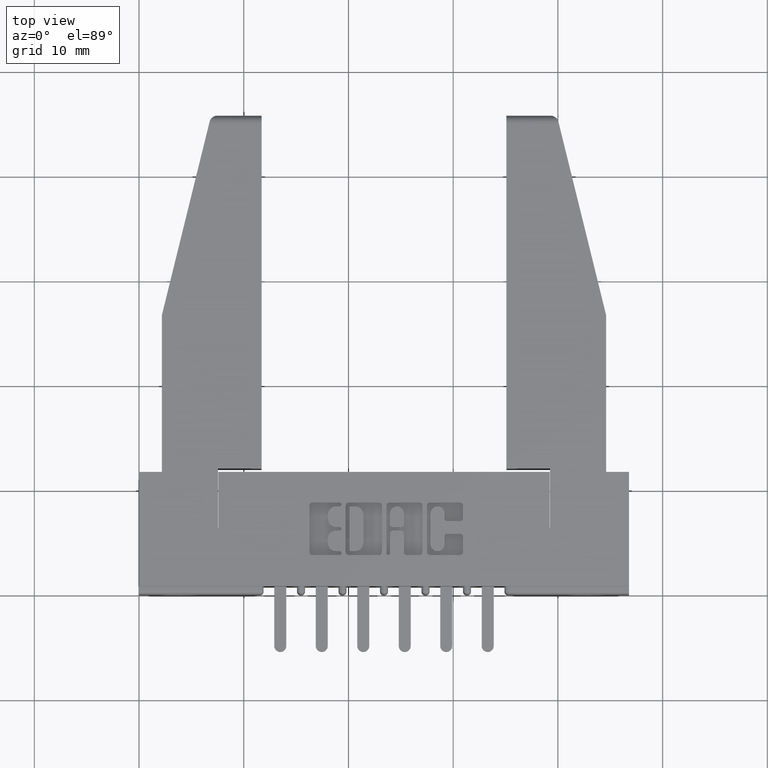
[diagram: clean part render]
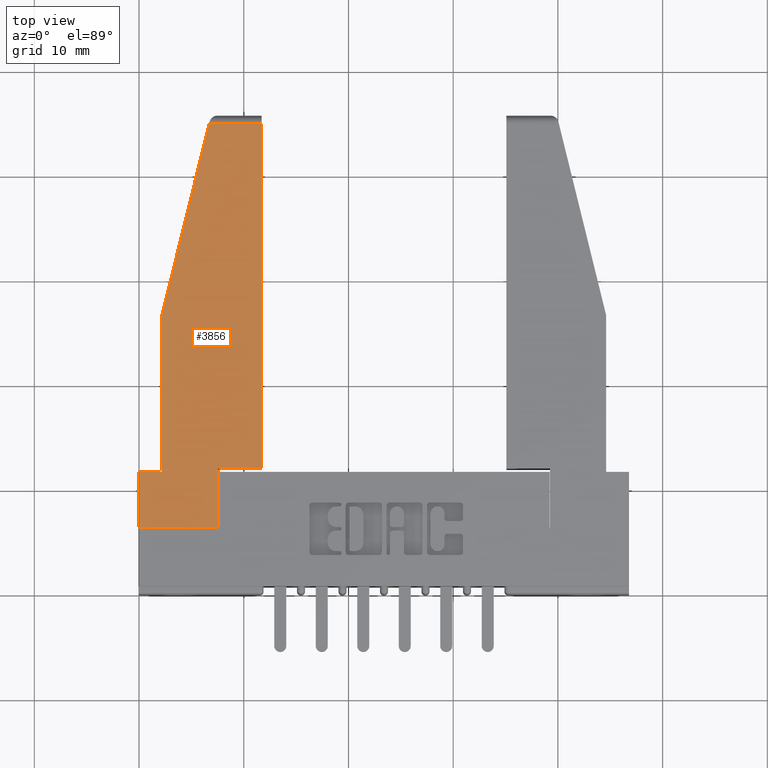
[diagram: same view with one face highlighted and labeled with its STEP entity id]
A machine part, top view. The second image highlights one B-rep face of the part: STEP entity #3856.
In plain terms, the highlighted planar face has unit normal (0, 0, 1).
Its self-contained STEP definition (entity closure, byte-faithful):
#1 = VERTEX_POINT ( 'NONE', #9636 ) ;
#54 = VERTEX_POINT ( 'NONE', #9536 ) ;
#191 = VERTEX_POINT ( 'NONE', #9671 ) ;
#246 = DIRECTION ( 'NONE',  ( 1.000000000000000000, 0.0000000000000000000, 0.0000000000000000000 ) ) ;
#300 = DIRECTION ( 'NONE',  ( -2.584735727134676700E-016, -1.000000000000000000, 0.0000000000000000000 ) ) ;
#354 = AXIS2_PLACEMENT_3D ( 'NONE', #5036, #8093, #1953 ) ;
#1241 = VECTOR ( 'NONE', #11266, 39.37007874015748100 ) ;
#1250 = EDGE_CURVE ( 'NONE', #9589, #11050, #11596, .T. ) ;
#1578 = CARTESIAN_POINT ( 'NONE',  ( 5.427945026982818800E-017, 0.2099999999999999400, 0.0000000000000000000 ) ) ;
#1601 = EDGE_LOOP ( 'NONE', ( #12337, #3460, #12536, #12217, #6101, #3802, #8323, #13134, #12881 ) ) ;
#1750 = CARTESIAN_POINT ( 'NONE',  ( 0.2710000000000000200, 1.550000000000000000, 0.0000000000000000000 ) ) ;
#1953 = DIRECTION ( 'NONE',  ( 1.000000000000000000, 0.0000000000000000000, 0.0000000000000000000 ) ) ;
#2279 = CARTESIAN_POINT ( 'NONE',  ( 0.0000000000000000000, 0.0000000000000000000, 0.0000000000000000000 ) ) ;
#2455 = LINE ( 'NONE', #1578, #6972 ) ;
#2670 = LINE ( 'NONE', #1750, #12767 ) ;
#3014 = VECTOR ( 'NONE', #6002, 39.37007874015748100 ) ;
#3190 = CARTESIAN_POINT ( 'NONE',  ( 0.08600000000000011800, 0.2099999999999999400, 0.0000000000000000000 ) ) ;
#3460 = ORIENTED_EDGE ( 'NONE', *, *, #8180, .T. ) ;
#3802 = ORIENTED_EDGE ( 'NONE', *, *, #1250, .T. ) ;
#3846 = DIRECTION ( 'NONE',  ( -0.2394884713086026000, -0.9708992080078490100, 0.0000000000000000000 ) ) ;
#3856 = ADVANCED_FACE ( 'NONE', ( #5290 ), #12275, .T. ) ;
#3936 = CARTESIAN_POINT ( 'NONE',  ( 0.2969999999999999900, 0.0000000000000000000, 0.0000000000000000000 ) ) ;
#4012 = DIRECTION ( 'NONE',  ( 0.0000000000000000000, 1.000000000000000000, 0.0000000000000000000 ) ) ;
#4109 = CARTESIAN_POINT ( 'NONE',  ( 0.2969999999999999900, 0.2230000000000000300, 0.0000000000000000000 ) ) ;
#4328 = EDGE_CURVE ( 'NONE', #11050, #8376, #12777, .T. ) ;
#4750 = EDGE_CURVE ( 'NONE', #191, #1, #2670, .T. ) ;
#4773 = LINE ( 'NONE', #3936, #8317 ) ;
#5036 = CARTESIAN_POINT ( 'NONE',  ( -7.582401355855259500E-033, 0.0000000000000000000, 0.0000000000000000000 ) ) ;
#5180 = VERTEX_POINT ( 'NONE', #12475 ) ;
#5249 = LINE ( 'NONE', #4109, #1241 ) ;
#5290 = FACE_OUTER_BOUND ( 'NONE', #1601, .T. ) ;
#5926 = EDGE_CURVE ( 'NONE', #1, #9714, #7323, .T. ) ;
#6002 = DIRECTION ( 'NONE',  ( 5.146661630867112300E-017, 1.000000000000000000, 0.0000000000000000000 ) ) ;
#6101 = ORIENTED_EDGE ( 'NONE', *, *, #7643, .T. ) ;
#6135 = DIRECTION ( 'NONE',  ( -1.000000000000000000, 0.0000000000000000000, -0.0000000000000000000 ) ) ;
#6168 = VECTOR ( 'NONE', #300, 39.37007874015748100 ) ;
#6847 = CARTESIAN_POINT ( 'NONE',  ( 0.2969999999999999900, 0.0000000000000000000, 0.0000000000000000000 ) ) ;
#6885 = DIRECTION ( 'NONE',  ( -2.893906772949430800E-017, -1.000000000000000000, 0.0000000000000000000 ) ) ;
#6972 = VECTOR ( 'NONE', #8755, 39.37007874015748100 ) ;
#7323 = LINE ( 'NONE', #10057, #11462 ) ;
#7643 = EDGE_CURVE ( 'NONE', #9714, #9589, #2455, .T. ) ;
#8064 = LINE ( 'NONE', #9183, #12200 ) ;
#8093 = DIRECTION ( 'NONE',  ( -0.0000000000000000000, 0.0000000000000000000, 1.000000000000000000 ) ) ;
#8180 = EDGE_CURVE ( 'NONE', #13160, #191, #8064, .T. ) ;
#8317 = VECTOR ( 'NONE', #4012, 39.37007874015748100 ) ;
#8323 = ORIENTED_EDGE ( 'NONE', *, *, #4328, .T. ) ;
#8376 = VERTEX_POINT ( 'NONE', #6847 ) ;
#8404 = CARTESIAN_POINT ( 'NONE',  ( 5.427945026982818800E-017, 0.2099999999999999400, 0.0000000000000000000 ) ) ;
#8755 = DIRECTION ( 'NONE',  ( -1.000000000000000000, -0.0000000000000000000, -0.0000000000000000000 ) ) ;
#9183 = CARTESIAN_POINT ( 'NONE',  ( -7.582401355855259500E-033, 1.520000000000000200, 0.0000000000000000000 ) ) ;
#9536 = CARTESIAN_POINT ( 'NONE',  ( 0.4610000000000000200, 0.2230000000000000300, 0.0000000000000000000 ) ) ;
#9589 = VERTEX_POINT ( 'NONE', #12182 ) ;
#9636 = CARTESIAN_POINT ( 'NONE',  ( 0.08600000000000013200, 0.8000000000000000400, 0.0000000000000000000 ) ) ;
#9671 = CARTESIAN_POINT ( 'NONE',  ( 0.2636000000000000600, 1.520000000000000200, 0.0000000000000000000 ) ) ;
#9714 = VERTEX_POINT ( 'NONE', #3190 ) ;
#10057 = CARTESIAN_POINT ( 'NONE',  ( 0.08600000000000013200, 0.8000000000000000400, 0.0000000000000000000 ) ) ;
#10491 = EDGE_CURVE ( 'NONE', #8376, #5180, #4773, .T. ) ;
#10507 = EDGE_CURVE ( 'NONE', #54, #13160, #12620, .T. ) ;
#10943 = CARTESIAN_POINT ( 'NONE',  ( 0.0000000000000000000, 0.0000000000000000000, 0.0000000000000000000 ) ) ;
#11050 = VERTEX_POINT ( 'NONE', #10943 ) ;
#11188 = CARTESIAN_POINT ( 'NONE',  ( 0.4610000000000000200, 0.2230000000000000300, 0.0000000000000000000 ) ) ;
#11223 = EDGE_CURVE ( 'NONE', #5180, #54, #5249, .T. ) ;
#11266 = DIRECTION ( 'NONE',  ( 1.000000000000000000, 0.0000000000000000000, 0.0000000000000000000 ) ) ;
#11367 = CARTESIAN_POINT ( 'NONE',  ( 0.4610000000000000800, 1.519999999999999600, 0.0000000000000000000 ) ) ;
#11462 = VECTOR ( 'NONE', #6885, 39.37007874015748100 ) ;
#11596 = LINE ( 'NONE', #8404, #6168 ) ;
#11652 = VECTOR ( 'NONE', #246, 39.37007874015748100 ) ;
#12182 = CARTESIAN_POINT ( 'NONE',  ( 5.427945026982818800E-017, 0.2099999999999999400, 0.0000000000000000000 ) ) ;
#12200 = VECTOR ( 'NONE', #6135, 39.37007874015748100 ) ;
#12217 = ORIENTED_EDGE ( 'NONE', *, *, #5926, .T. ) ;
#12275 = PLANE ( 'NONE',  #354 ) ;
#12337 = ORIENTED_EDGE ( 'NONE', *, *, #10507, .T. ) ;
#12475 = CARTESIAN_POINT ( 'NONE',  ( 0.2969999999999999900, 0.2230000000000000300, 0.0000000000000000000 ) ) ;
#12536 = ORIENTED_EDGE ( 'NONE', *, *, #4750, .T. ) ;
#12620 = LINE ( 'NONE', #11188, #3014 ) ;
#12767 = VECTOR ( 'NONE', #3846, 39.37007874015748900 ) ;
#12777 = LINE ( 'NONE', #2279, #11652 ) ;
#12881 = ORIENTED_EDGE ( 'NONE', *, *, #11223, .T. ) ;
#13134 = ORIENTED_EDGE ( 'NONE', *, *, #10491, .T. ) ;
#13160 = VERTEX_POINT ( 'NONE', #11367 ) ;